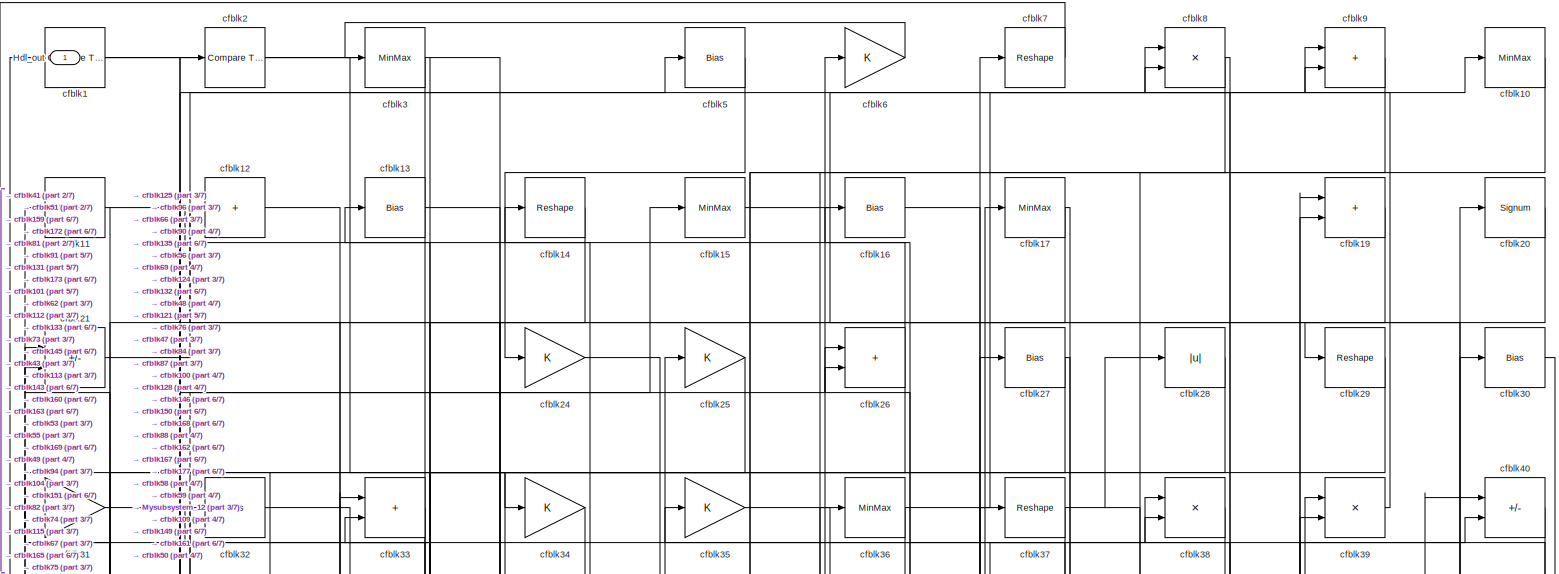
[diagram: root canvas - part 1/7, full width, top band]
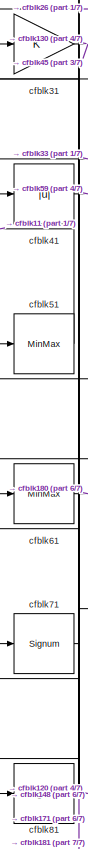
[diagram: root canvas - part 2/7, top left region]
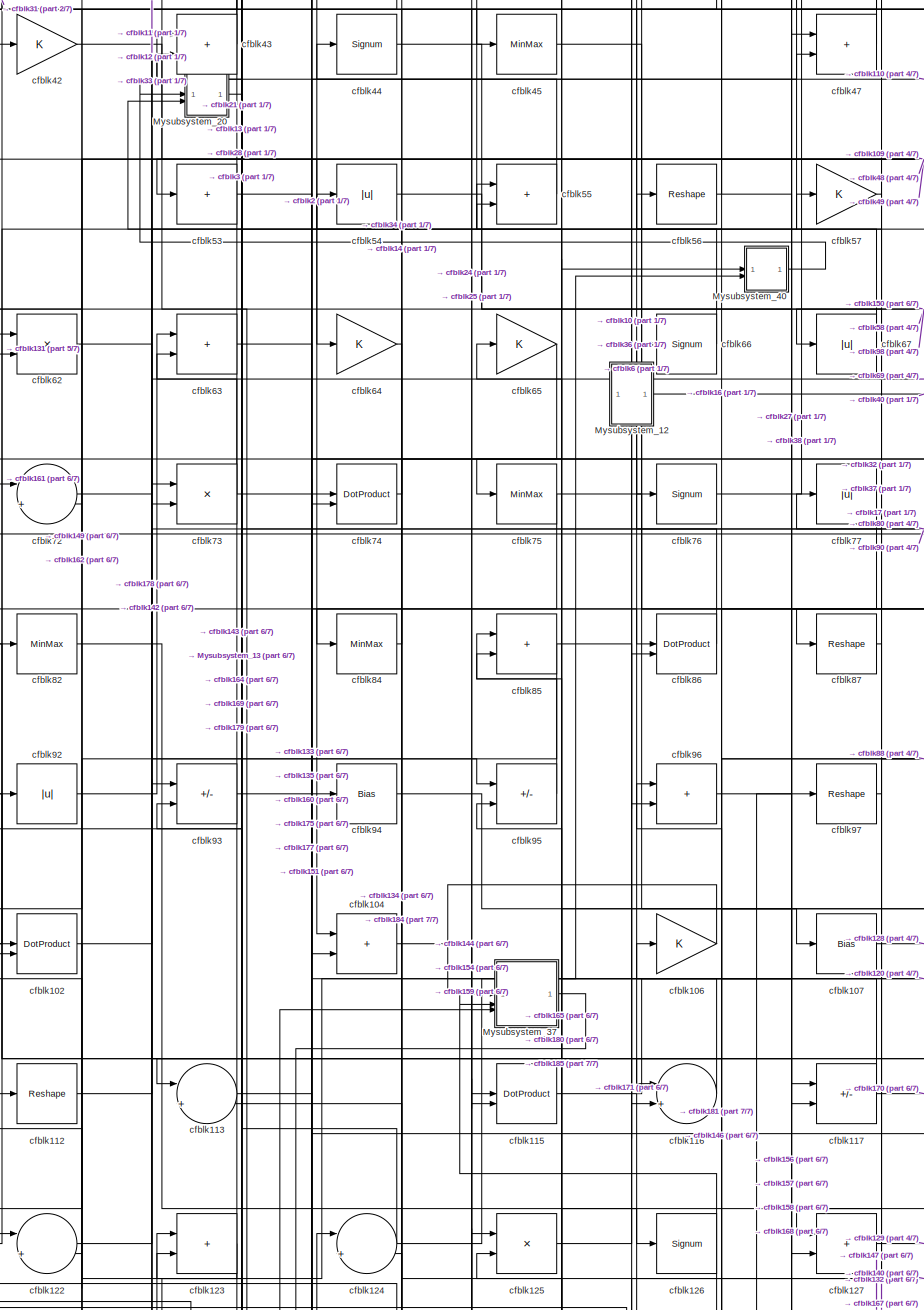
[diagram: root canvas - part 3/7, central region]
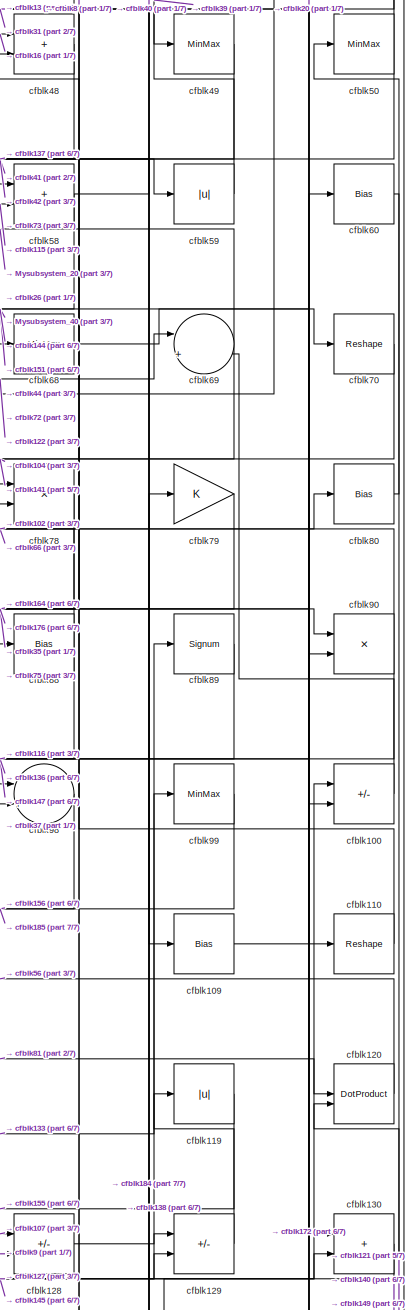
[diagram: root canvas - part 4/7, middle right region]
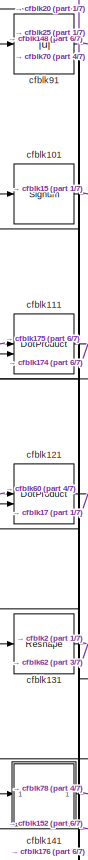
[diagram: root canvas - part 5/7, middle left region]
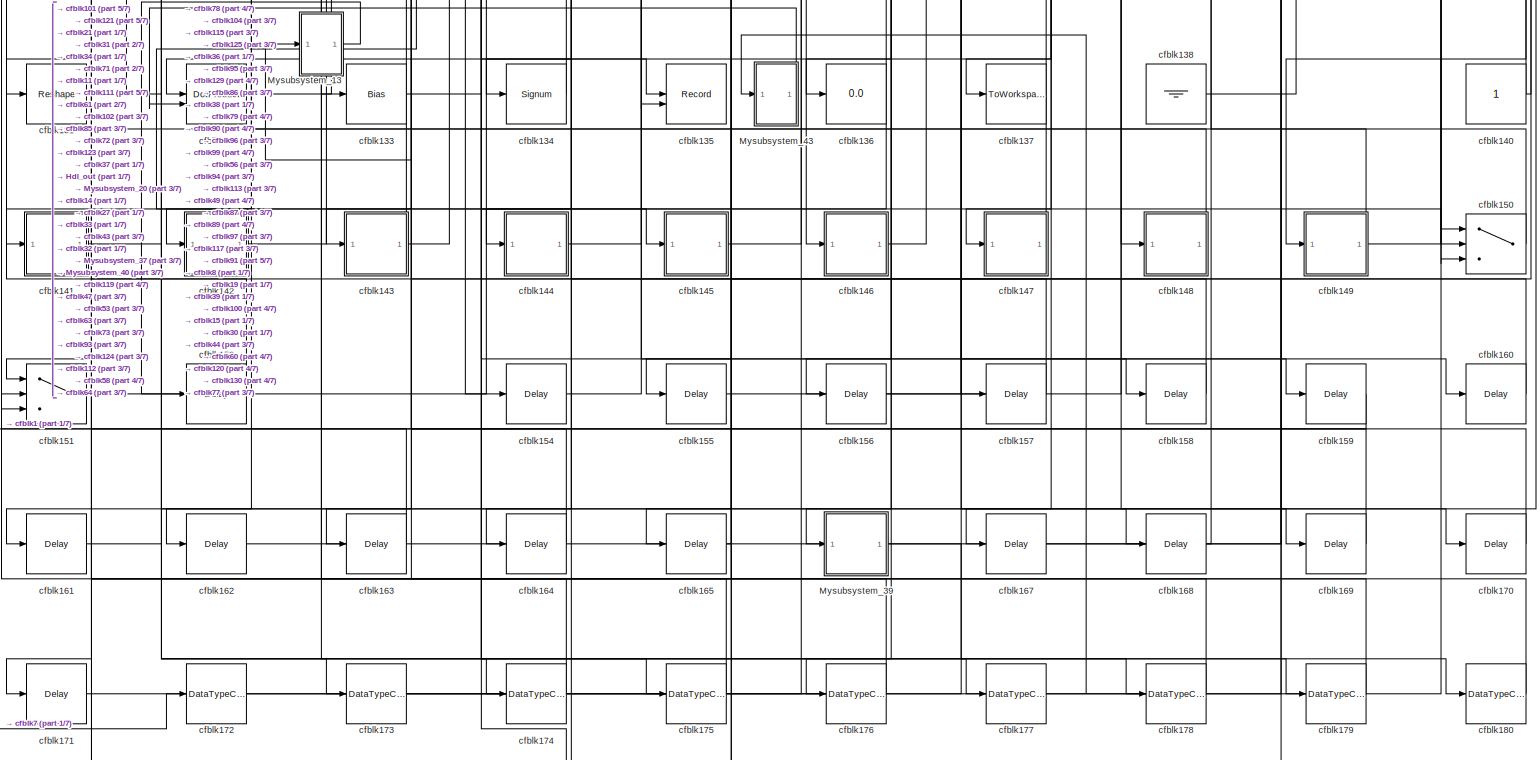
[diagram: root canvas - part 6/7, full width, bottom band]
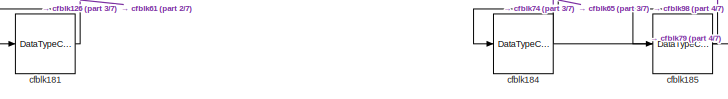
[diagram: root canvas - part 7/7, bottom left region]
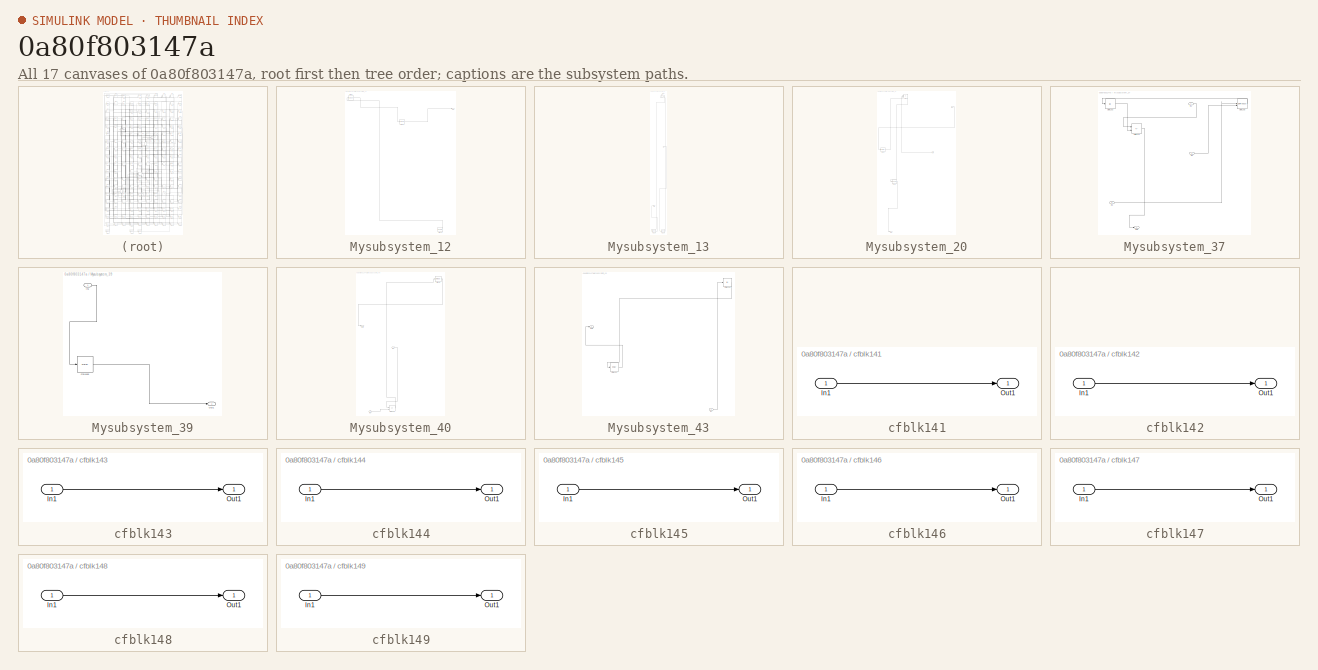
[diagram: thumbnail index - all 17 canvases of the model, root first then tree order]
MODEL slx_0a80f803147a
KIND model
CONFIG AbsTol = auto
CONFIG EnableMultiTasking = off
CONFIG FixedStep = auto
CONFIG MaxStep = auto
CONFIG MinStep = auto
CONFIG RelTol = 1e-3
CONFIG SampleTimeConstraint = Unconstrained
CONFIG SolverName = VariableStepAuto
CONFIG StartTime = 0.0
CONFIG StopTime = 10.0
BLOCK [Outport] Hdl_out
  OutDataTypeStr = uint8
BLOCK [SubSystem] Mysubsystem_12
  RTWFcnName = Mysubsystem_12
  RTWFcnNameOpts = User specified
  RTWFileNameOpts = Use function name
  RTWSystemCode = Reusable function
  TreatAsAtomicUnit = on
BLOCK [Outport] Mysubsystem_12/Out1
BLOCK [Reference] Mysubsystem_12/cfblk139  REF=hdlsllib/Sources/Counter
Limited
  SourceBlock = hdlsllib/Sources/Counter\nLimited
  SourceType = Counter Limited
BLOCK [Signum] Mysubsystem_12/cfblk22
BLOCK [Signum] Mysubsystem_12/cfblk46
BLOCK [SubSystem] Mysubsystem_13
  RTWFcnName = Mysubsystem_13
  RTWFcnNameOpts = User specified
  RTWFileNameOpts = Use function name
  RTWSystemCode = Reusable function
  TreatAsAtomicUnit = on
BLOCK [Inport] Mysubsystem_13/In1
BLOCK [Outport] Mysubsystem_13/Out1
BLOCK [DataTypeConversion] Mysubsystem_13/cfblk182
  OutDataTypeStr = uint8
  RndMeth = Floor
  SaturateOnIntegerOverflow = off
BLOCK [DataTypeConversion] Mysubsystem_13/cfblk183
  OutDataTypeStr = uint8
  RndMeth = Floor
  SaturateOnIntegerOverflow = off
BLOCK [Gain] Mysubsystem_13/cfblk23
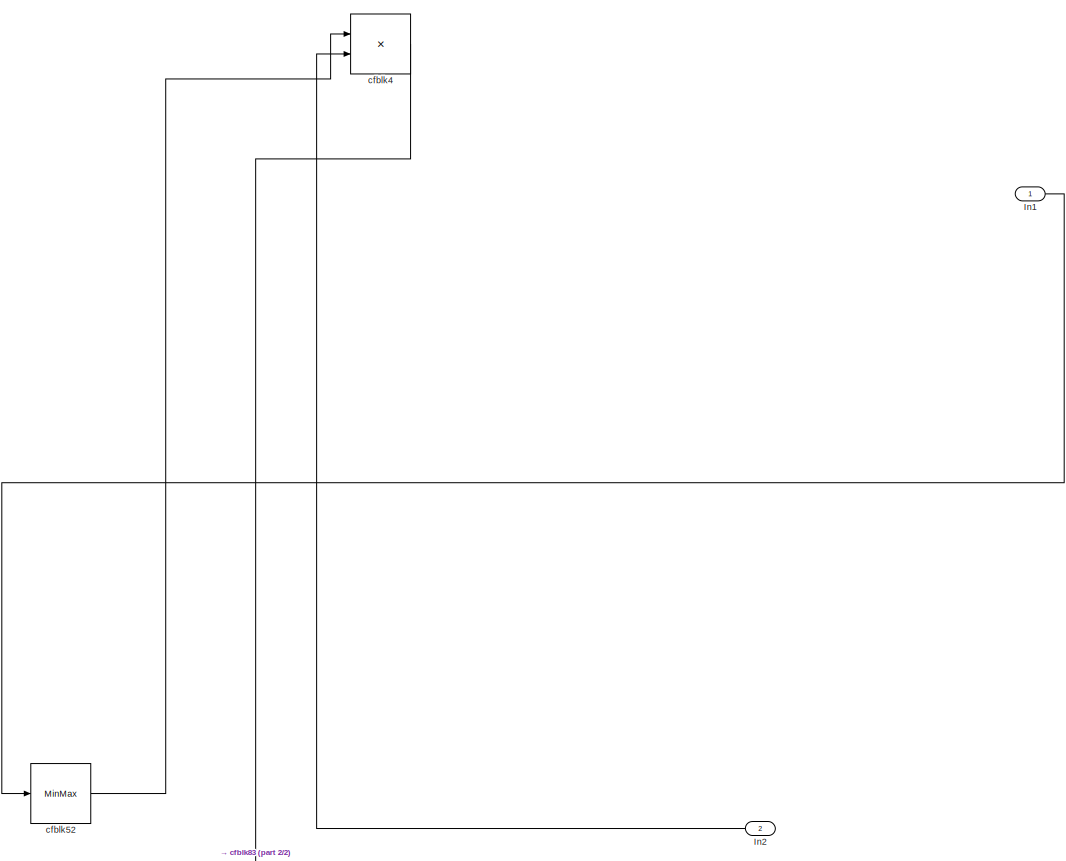
[diagram: Mysubsystem_20 - part 1/2, full width, top band]
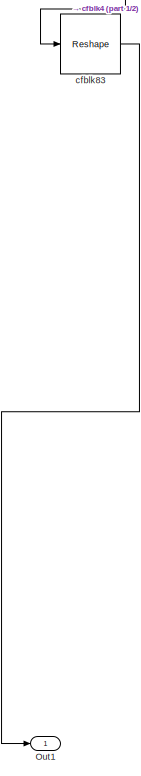
[diagram: Mysubsystem_20 - part 2/2, bottom left region]
BLOCK [SubSystem] Mysubsystem_20
  RTWFcnName = Mysubsystem_20
  RTWFcnNameOpts = User specified
  RTWFileNameOpts = Use function name
  RTWSystemCode = Reusable function
  TreatAsAtomicUnit = on
BLOCK [Inport] Mysubsystem_20/In1
BLOCK [Inport] Mysubsystem_20/In2
  Port = 2
BLOCK [Outport] Mysubsystem_20/Out1
BLOCK [Product] Mysubsystem_20/cfblk4
  Inputs = */
  RndMeth = Zero
  SaturateOnIntegerOverflow = on
BLOCK [MinMax] Mysubsystem_20/cfblk52
BLOCK [Reshape] Mysubsystem_20/cfblk83
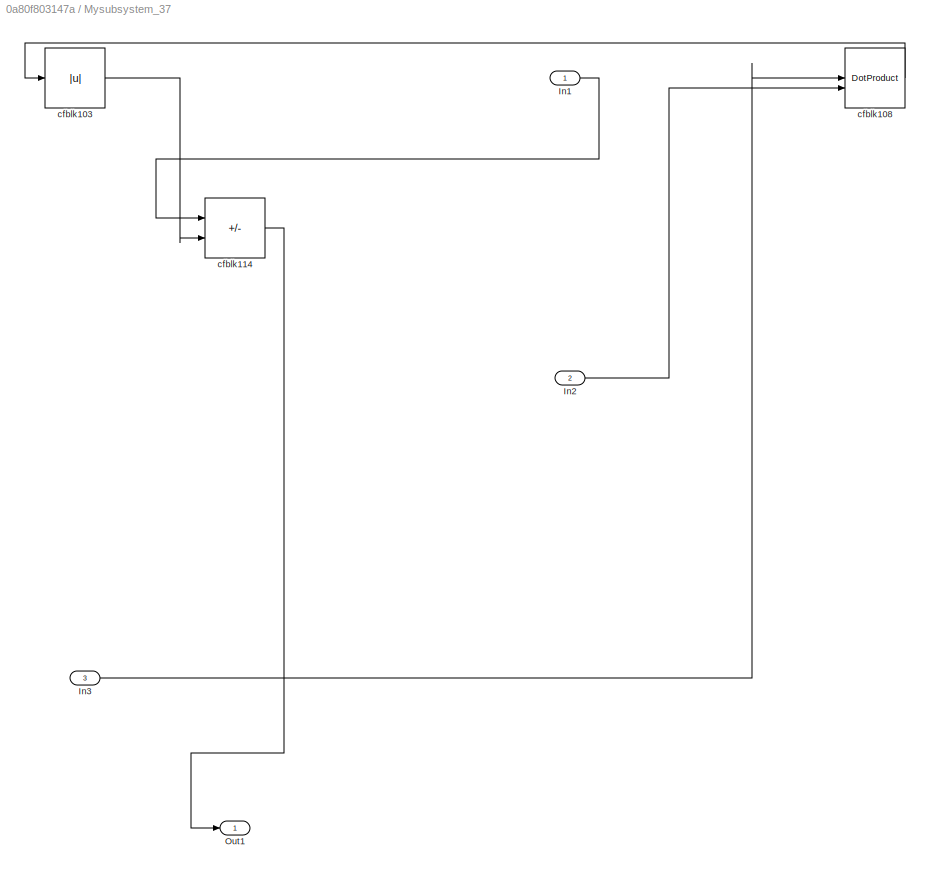
BLOCK [SubSystem] Mysubsystem_37
  RTWFcnName = Mysubsystem_37
  RTWFcnNameOpts = User specified
  RTWFileNameOpts = Use function name
  RTWSystemCode = Reusable function
  TreatAsAtomicUnit = on
BLOCK [Inport] Mysubsystem_37/In1
BLOCK [Inport] Mysubsystem_37/In2
  Port = 2
BLOCK [Inport] Mysubsystem_37/In3
  Port = 3
BLOCK [Outport] Mysubsystem_37/Out1
BLOCK [Abs] Mysubsystem_37/cfblk103
  SaturateOnIntegerOverflow = off
BLOCK [DotProduct] Mysubsystem_37/cfblk108
  OutDataTypeStr = Inherit: Inherit via internal rule
BLOCK [Sum] Mysubsystem_37/cfblk114
  IconShape = rectangular
  Inputs = +-
BLOCK [SubSystem] Mysubsystem_39
  RTWFcnName = Mysubsystem_39
  RTWFcnNameOpts = User specified
  RTWFileNameOpts = Use function name
  RTWSystemCode = Reusable function
  TreatAsAtomicUnit = on
BLOCK [Inport] Mysubsystem_39/In1
BLOCK [Outport] Mysubsystem_39/Out1
BLOCK [Delay] Mysubsystem_39/cfblk166
  InputPortMap = u0
  SampleTime = 1
BLOCK [SubSystem] Mysubsystem_40
  RTWFcnName = Mysubsystem_40
  RTWFcnNameOpts = User specified
  RTWFileNameOpts = Use function name
  RTWSystemCode = Reusable function
  TreatAsAtomicUnit = on
BLOCK [Inport] Mysubsystem_40/In1
BLOCK [Inport] Mysubsystem_40/In2
  Port = 2
BLOCK [Outport] Mysubsystem_40/Out1
BLOCK [Sum] Mysubsystem_40/cfblk105
  IconShape = rectangular
  Inputs = +-
BLOCK [MinMax] Mysubsystem_40/cfblk18
BLOCK [SubSystem] Mysubsystem_43
  RTWFcnName = Mysubsystem_43
  RTWFcnNameOpts = User specified
  RTWFileNameOpts = Use function name
  RTWSystemCode = Reusable function
  TreatAsAtomicUnit = on
BLOCK [Inport] Mysubsystem_43/In1
BLOCK [Outport] Mysubsystem_43/Out1
BLOCK [Abs] Mysubsystem_43/cfblk118
  SaturateOnIntegerOverflow = off
BLOCK [Delay] Mysubsystem_43/cfblk153
  InputPortMap = u0
  SampleTime = 1
BLOCK [Reference] cfblk1  REF=hdlsllib/Logic and Bit
Operations/Compare
To Zero
  SourceBlock = hdlsllib/Logic and Bit\nOperations/Compare\nTo Zero
  SourceType = Compare To Zero
BLOCK [MinMax] cfblk10
  OutDataTypeStr = uint8
BLOCK [Sum] cfblk100
  IconShape = rectangular
  Inputs = +-
  OutDataTypeStr = uint8
BLOCK [Signum] cfblk101
BLOCK [DotProduct] cfblk102
  OutDataTypeStr = uint8
BLOCK [Sum] cfblk104
  IconShape = rectangular
  OutDataTypeStr = uint8
BLOCK [Gain] cfblk106
  OutDataTypeStr = uint8
BLOCK [Bias] cfblk107
  Bias = 0.0
  SaturateOnIntegerOverflow = off
BLOCK [Bias] cfblk109
  Bias = 0.0
  SaturateOnIntegerOverflow = off
BLOCK [MinMax] cfblk11
  OutDataTypeStr = uint8
BLOCK [Reshape] cfblk110
BLOCK [DotProduct] cfblk111
  OutDataTypeStr = uint8
BLOCK [Reshape] cfblk112
BLOCK [Sum] cfblk113
  Inputs = |++
  OutDataTypeStr = uint8
BLOCK [DotProduct] cfblk115
  OutDataTypeStr = uint8
BLOCK [Sum] cfblk116
  Inputs = |++
  OutDataTypeStr = uint8
BLOCK [Sum] cfblk117
  IconShape = rectangular
  Inputs = +-
  OutDataTypeStr = uint8
BLOCK [Abs] cfblk119
  OutDataTypeStr = uint8
  SaturateOnIntegerOverflow = off
BLOCK [Sum] cfblk12
  IconShape = rectangular
  Inputs = +
  OutDataTypeStr = uint8
BLOCK [DotProduct] cfblk120
  OutDataTypeStr = uint8
BLOCK [DotProduct] cfblk121
  OutDataTypeStr = uint8
BLOCK [Sum] cfblk122
  Inputs = |++
  OutDataTypeStr = uint8
BLOCK [Sum] cfblk123
  IconShape = rectangular
  OutDataTypeStr = uint8
BLOCK [Sum] cfblk124
  Inputs = |++
  OutDataTypeStr = uint8
BLOCK [Product] cfblk125
  Inputs = */
  OutDataTypeStr = uint8
  RndMeth = Zero
  SaturateOnIntegerOverflow = on
BLOCK [Signum] cfblk126
BLOCK [Sum] cfblk127
  IconShape = rectangular
  OutDataTypeStr = uint8
BLOCK [Sum] cfblk128
  IconShape = rectangular
  Inputs = +-
  OutDataTypeStr = uint8
BLOCK [Sum] cfblk129
  IconShape = rectangular
  Inputs = +-
  OutDataTypeStr = uint8
BLOCK [Bias] cfblk13
  Bias = 0.0
  SaturateOnIntegerOverflow = off
BLOCK [Sum] cfblk130
  IconShape = rectangular
  OutDataTypeStr = uint8
BLOCK [Reshape] cfblk131
BLOCK [DotProduct] cfblk132
  OutDataTypeStr = uint8
BLOCK [Bias] cfblk133
  Bias = 0.0
  SaturateOnIntegerOverflow = off
BLOCK [Signum] cfblk134
BLOCK [Record] cfblk135
  CompatibilityTag = XY
  FileSettingsInternal = {"entries":[{"content":{"excelSettings":{"content":{},"type":"Streamout.ExcelSettings"}},"type":"Streamout.FileSettingStorage","uuid":""}],"packageUris":["http:\/\/schema.mathworks.com\/mf0\/streamout_blocks\/R2020a"],"version":"1.0"}
  Layout = [1 1]
  SignalsInternal = {"entries":[{"content":{"signals":[{"content":{"blockPath":[],"dimensions":[1],"domain":"","lineColor":"#a2142f","plots":[1],"port":1,"signalID":30093,"signalName":"cfblk73"},"type":"RecordBlkView.Signal","uuid":""},{"content":{"blockPath":[],"dimensions":[1],"domain":"","lineColor":"#139fff","plots":[1],"port":2,"signalID":30096,"signalName":"cfblk36"},"type":"RecordBlkView.Signal","uuid":""}]},"...<+142ch>
  VisualizationBindings = {"xyplotplugin":{"info":[{"series":[{"bindingParametersList":[{"parameter":"X-Axis","signalID":30093,"signalName":"cfblk73"},{"parameter":"Y-Axis","signalID":30096,"signalName":"cfblk36"}],"seriesID":1686}],"subplotID":1}]}}
  st = -1
BLOCK [Display] cfblk136
  Decimation = 1
BLOCK [ToWorkspace] cfblk137
  MaxDataPoints = inf
  SampleTime = -1
  SaveFormat = Timeseries
  VariableName = simout
BLOCK [Ground] cfblk138
BLOCK [Reshape] cfblk14
BLOCK [Constant] cfblk140
  OutDataTypeStr = uint8
  SampleTime = -1
BLOCK [SubSystem] cfblk141
  LibrarySourceBlock = hdlsllib/Ports &\nSubsystems/Subsystem
BLOCK [Inport] cfblk141/In1
BLOCK [Outport] cfblk141/Out1
BLOCK [SubSystem] cfblk142
  LibrarySourceBlock = hdlsllib/Ports &\nSubsystems/Subsystem
BLOCK [Inport] cfblk142/In1
BLOCK [Outport] cfblk142/Out1
BLOCK [SubSystem] cfblk143
  LibrarySourceBlock = hdlsllib/Ports &\nSubsystems/Subsystem
BLOCK [Inport] cfblk143/In1
BLOCK [Outport] cfblk143/Out1
BLOCK [SubSystem] cfblk144
  LibrarySourceBlock = hdlsllib/Ports &\nSubsystems/Subsystem
BLOCK [Inport] cfblk144/In1
BLOCK [Outport] cfblk144/Out1
BLOCK [SubSystem] cfblk145
  LibrarySourceBlock = hdlsllib/Ports &\nSubsystems/Subsystem
BLOCK [Inport] cfblk145/In1
BLOCK [Outport] cfblk145/Out1
BLOCK [SubSystem] cfblk146
  LibrarySourceBlock = hdlsllib/Ports &\nSubsystems/Subsystem
BLOCK [Inport] cfblk146/In1
BLOCK [Outport] cfblk146/Out1
BLOCK [SubSystem] cfblk147
  LibrarySourceBlock = hdlsllib/Ports &\nSubsystems/Subsystem
BLOCK [Inport] cfblk147/In1
BLOCK [Outport] cfblk147/Out1
BLOCK [SubSystem] cfblk148
  LibrarySourceBlock = hdlsllib/Ports &\nSubsystems/Subsystem
BLOCK [Inport] cfblk148/In1
BLOCK [Outport] cfblk148/Out1
BLOCK [SubSystem] cfblk149
  LibrarySourceBlock = hdlsllib/Ports &\nSubsystems/Subsystem
BLOCK [Inport] cfblk149/In1
BLOCK [Outport] cfblk149/Out1
BLOCK [MinMax] cfblk15
  OutDataTypeStr = uint8
BLOCK [Switch] cfblk150
  InputSameDT = off
  OutDataTypeStr = uint8
  SaturateOnIntegerOverflow = off
BLOCK [Switch] cfblk151
  InputSameDT = off
  OutDataTypeStr = uint8
  SaturateOnIntegerOverflow = off
BLOCK [Delay] cfblk152
  InputPortMap = u0
  SampleTime = 1
BLOCK [Delay] cfblk154
  InputPortMap = u0
  SampleTime = 1
BLOCK [Delay] cfblk155
  InputPortMap = u0
  SampleTime = 1
BLOCK [Delay] cfblk156
  InputPortMap = u0
  SampleTime = 1
BLOCK [Delay] cfblk157
  InputPortMap = u0
  SampleTime = 1
BLOCK [Delay] cfblk158
  InputPortMap = u0
  SampleTime = 1
BLOCK [Delay] cfblk159
  InputPortMap = u0
  SampleTime = 1
BLOCK [Bias] cfblk16
  Bias = 0.0
  SaturateOnIntegerOverflow = off
BLOCK [Delay] cfblk160
  InputPortMap = u0
  SampleTime = 1
BLOCK [Delay] cfblk161
  InputPortMap = u0
  SampleTime = 1
BLOCK [Delay] cfblk162
  InputPortMap = u0
  SampleTime = 1
BLOCK [Delay] cfblk163
  InputPortMap = u0
  SampleTime = 1
BLOCK [Delay] cfblk164
  InputPortMap = u0
  SampleTime = 1
BLOCK [Delay] cfblk165
  InputPortMap = u0
  SampleTime = 1
BLOCK [Delay] cfblk167
  InputPortMap = u0
  SampleTime = 1
BLOCK [Delay] cfblk168
  InputPortMap = u0
  SampleTime = 1
BLOCK [Delay] cfblk169
  InputPortMap = u0
  SampleTime = 1
BLOCK [MinMax] cfblk17
  OutDataTypeStr = uint8
BLOCK [Delay] cfblk170
  InputPortMap = u0
  SampleTime = 1
BLOCK [Delay] cfblk171
  InputPortMap = u0
  SampleTime = 1
BLOCK [DataTypeConversion] cfblk172
  OutDataTypeStr = uint8
  RndMeth = Floor
  SaturateOnIntegerOverflow = off
BLOCK [DataTypeConversion] cfblk173
  OutDataTypeStr = uint8
  RndMeth = Floor
  SaturateOnIntegerOverflow = off
BLOCK [DataTypeConversion] cfblk174
  OutDataTypeStr = uint8
  RndMeth = Floor
  SaturateOnIntegerOverflow = off
BLOCK [DataTypeConversion] cfblk175
  OutDataTypeStr = uint8
  RndMeth = Floor
  SaturateOnIntegerOverflow = off
BLOCK [DataTypeConversion] cfblk176
  OutDataTypeStr = uint8
  RndMeth = Floor
  SaturateOnIntegerOverflow = off
BLOCK [DataTypeConversion] cfblk177
  OutDataTypeStr = uint8
  RndMeth = Floor
  SaturateOnIntegerOverflow = off
BLOCK [DataTypeConversion] cfblk178
  OutDataTypeStr = uint8
  RndMeth = Floor
  SaturateOnIntegerOverflow = off
BLOCK [DataTypeConversion] cfblk179
  OutDataTypeStr = uint8
  RndMeth = Floor
  SaturateOnIntegerOverflow = off
BLOCK [DataTypeConversion] cfblk180
  OutDataTypeStr = uint8
  RndMeth = Floor
  SaturateOnIntegerOverflow = off
BLOCK [DataTypeConversion] cfblk181
  OutDataTypeStr = uint8
  RndMeth = Floor
  SaturateOnIntegerOverflow = off
BLOCK [DataTypeConversion] cfblk184
  OutDataTypeStr = uint8
  RndMeth = Floor
  SaturateOnIntegerOverflow = off
BLOCK [DataTypeConversion] cfblk185
  OutDataTypeStr = uint8
  RndMeth = Floor
  SaturateOnIntegerOverflow = off
BLOCK [Sum] cfblk19
  IconShape = rectangular
  OutDataTypeStr = uint8
BLOCK [Reference] cfblk2  REF=hdlsllib/Logic and Bit
Operations/Compare
To Zero
  SourceBlock = hdlsllib/Logic and Bit\nOperations/Compare\nTo Zero
  SourceType = Compare To Zero
BLOCK [Signum] cfblk20
BLOCK [Sum] cfblk21
  IconShape = rectangular
  Inputs = +-
  OutDataTypeStr = uint8
BLOCK [Gain] cfblk24
  OutDataTypeStr = uint8
BLOCK [Gain] cfblk25
  OutDataTypeStr = uint8
BLOCK [Sum] cfblk26
  IconShape = rectangular
  OutDataTypeStr = uint8
BLOCK [Bias] cfblk27
  Bias = 0.0
  SaturateOnIntegerOverflow = off
BLOCK [Abs] cfblk28
  OutDataTypeStr = uint8
  SaturateOnIntegerOverflow = off
BLOCK [Reshape] cfblk29
BLOCK [MinMax] cfblk3
  OutDataTypeStr = uint8
BLOCK [Bias] cfblk30
  Bias = 0.0
  SaturateOnIntegerOverflow = off
BLOCK [Gain] cfblk31
  OutDataTypeStr = uint8
BLOCK [Bias] cfblk32
  Bias = 0.0
  SaturateOnIntegerOverflow = off
BLOCK [Sum] cfblk33
  IconShape = rectangular
  OutDataTypeStr = uint8
BLOCK [Gain] cfblk34
  OutDataTypeStr = uint8
BLOCK [Gain] cfblk35
  OutDataTypeStr = uint8
BLOCK [MinMax] cfblk36
  OutDataTypeStr = uint8
BLOCK [Reshape] cfblk37
BLOCK [Product] cfblk38
  Inputs = */
  OutDataTypeStr = uint8
  RndMeth = Zero
  SaturateOnIntegerOverflow = on
BLOCK [Product] cfblk39
  Inputs = */
  OutDataTypeStr = uint8
  RndMeth = Zero
  SaturateOnIntegerOverflow = on
BLOCK [Sum] cfblk40
  IconShape = rectangular
  Inputs = +-
  OutDataTypeStr = uint8
BLOCK [Abs] cfblk41
  OutDataTypeStr = uint8
  SaturateOnIntegerOverflow = off
BLOCK [Gain] cfblk42
  OutDataTypeStr = uint8
BLOCK [Sum] cfblk43
  IconShape = rectangular
  OutDataTypeStr = uint8
BLOCK [Signum] cfblk44
BLOCK [MinMax] cfblk45
  OutDataTypeStr = uint8
BLOCK [Sum] cfblk47
  IconShape = rectangular
  OutDataTypeStr = uint8
BLOCK [Sum] cfblk48
  IconShape = rectangular
  OutDataTypeStr = uint8
BLOCK [MinMax] cfblk49
  OutDataTypeStr = uint8
BLOCK [Bias] cfblk5
  Bias = 0.0
  SaturateOnIntegerOverflow = off
BLOCK [MinMax] cfblk50
  OutDataTypeStr = uint8
BLOCK [MinMax] cfblk51
  OutDataTypeStr = uint8
BLOCK [Sum] cfblk53
  IconShape = rectangular
  Inputs = +
  OutDataTypeStr = uint8
BLOCK [Abs] cfblk54
  OutDataTypeStr = uint8
  SaturateOnIntegerOverflow = off
BLOCK [Sum] cfblk55
  IconShape = rectangular
  OutDataTypeStr = uint8
BLOCK [Reshape] cfblk56
BLOCK [Gain] cfblk57
  OutDataTypeStr = uint8
BLOCK [Sum] cfblk58
  IconShape = rectangular
  OutDataTypeStr = uint8
BLOCK [Abs] cfblk59
  OutDataTypeStr = uint8
  SaturateOnIntegerOverflow = off
BLOCK [Gain] cfblk6
  OutDataTypeStr = uint8
BLOCK [Bias] cfblk60
  Bias = 0.0
  SaturateOnIntegerOverflow = off
BLOCK [MinMax] cfblk61
  OutDataTypeStr = uint8
BLOCK [Product] cfblk62
  Inputs = */
  OutDataTypeStr = uint8
  RndMeth = Zero
  SaturateOnIntegerOverflow = on
BLOCK [Sum] cfblk63
  IconShape = rectangular
  OutDataTypeStr = uint8
BLOCK [Gain] cfblk64
  OutDataTypeStr = uint8
BLOCK [Gain] cfblk65
  OutDataTypeStr = uint8
BLOCK [Signum] cfblk66
BLOCK [Abs] cfblk67
  OutDataTypeStr = uint8
  SaturateOnIntegerOverflow = off
BLOCK [MinMax] cfblk68
  OutDataTypeStr = uint8
BLOCK [Sum] cfblk69
  Inputs = |++
  OutDataTypeStr = uint8
BLOCK [Reshape] cfblk7
BLOCK [Reshape] cfblk70
BLOCK [Signum] cfblk71
BLOCK [Sum] cfblk72
  Inputs = |++
  OutDataTypeStr = uint8
BLOCK [Product] cfblk73
  Inputs = */
  OutDataTypeStr = uint8
  RndMeth = Zero
  SaturateOnIntegerOverflow = on
BLOCK [DotProduct] cfblk74
  OutDataTypeStr = uint8
BLOCK [MinMax] cfblk75
  OutDataTypeStr = uint8
BLOCK [Signum] cfblk76
BLOCK [Abs] cfblk77
  OutDataTypeStr = uint8
  SaturateOnIntegerOverflow = off
BLOCK [Product] cfblk78
  Inputs = */
  OutDataTypeStr = uint8
  RndMeth = Zero
  SaturateOnIntegerOverflow = on
BLOCK [Gain] cfblk79
  OutDataTypeStr = uint8
BLOCK [Product] cfblk8
  Inputs = */
  OutDataTypeStr = uint8
  RndMeth = Zero
  SaturateOnIntegerOverflow = on
BLOCK [Bias] cfblk80
  Bias = 0.0
  SaturateOnIntegerOverflow = off
BLOCK [Signum] cfblk81
BLOCK [MinMax] cfblk82
  OutDataTypeStr = uint8
BLOCK [MinMax] cfblk84
  OutDataTypeStr = uint8
BLOCK [Sum] cfblk85
  IconShape = rectangular
  OutDataTypeStr = uint8
BLOCK [DotProduct] cfblk86
  OutDataTypeStr = uint8
BLOCK [Reshape] cfblk87
BLOCK [Bias] cfblk88
  Bias = 0.0
  SaturateOnIntegerOverflow = off
BLOCK [Signum] cfblk89
BLOCK [Sum] cfblk9
  IconShape = rectangular
  OutDataTypeStr = uint8
BLOCK [Product] cfblk90
  Inputs = */
  OutDataTypeStr = uint8
  RndMeth = Zero
  SaturateOnIntegerOverflow = on
BLOCK [Abs] cfblk91
  OutDataTypeStr = uint8
  SaturateOnIntegerOverflow = off
BLOCK [Abs] cfblk92
  OutDataTypeStr = uint8
  SaturateOnIntegerOverflow = off
BLOCK [Sum] cfblk93
  IconShape = rectangular
  Inputs = +-
  OutDataTypeStr = uint8
BLOCK [Bias] cfblk94
  Bias = 0.0
  SaturateOnIntegerOverflow = off
BLOCK [Sum] cfblk95
  IconShape = rectangular
  Inputs = +-
  OutDataTypeStr = uint8
BLOCK [Sum] cfblk96
  IconShape = rectangular
  OutDataTypeStr = uint8
BLOCK [Reshape] cfblk97
BLOCK [Sum] cfblk98
  Inputs = |++
  OutDataTypeStr = uint8
BLOCK [MinMax] cfblk99
  OutDataTypeStr = uint8
LINE Mysubsystem_12/cfblk139:1 -> Mysubsystem_12/cfblk22:1
LINE Mysubsystem_12/cfblk22:1 -> Mysubsystem_12/cfblk46:1
LINE Mysubsystem_12/cfblk46:1 -> Mysubsystem_12/Out1:1
LINE Mysubsystem_12:1 -> cfblk40:1
LINE Mysubsystem_13/In1:1 -> Mysubsystem_13/cfblk183:1
LINE Mysubsystem_13/cfblk182:1 -> Mysubsystem_13/Out1:1
LINE Mysubsystem_13/cfblk183:1 -> Mysubsystem_13/cfblk23:1
LINE Mysubsystem_13/cfblk23:1 -> Mysubsystem_13/cfblk182:1
LINE Mysubsystem_13:1 -> cfblk152:1
LINE Mysubsystem_20/In1:1 -> Mysubsystem_20/cfblk52:1
LINE Mysubsystem_20/In2:1 -> Mysubsystem_20/cfblk4:2
LINE Mysubsystem_20/cfblk4:1 -> Mysubsystem_20/cfblk83:1
LINE Mysubsystem_20/cfblk52:1 -> Mysubsystem_20/cfblk4:1
LINE Mysubsystem_20/cfblk83:1 -> Mysubsystem_20/Out1:1
LINE Mysubsystem_20:1 -> Mysubsystem_13:1
LINE Mysubsystem_37/In1:1 -> Mysubsystem_37/cfblk114:1
LINE Mysubsystem_37/In2:1 -> Mysubsystem_37/cfblk108:2
LINE Mysubsystem_37/In3:1 -> Mysubsystem_37/cfblk108:1
LINE Mysubsystem_37/cfblk103:1 -> Mysubsystem_37/cfblk114:2
LINE Mysubsystem_37/cfblk108:1 -> Mysubsystem_37/cfblk103:1
LINE Mysubsystem_37/cfblk114:1 -> Mysubsystem_37/Out1:1
LINE Mysubsystem_37:1 -> cfblk154:1
LINE Mysubsystem_39/In1:1 -> Mysubsystem_39/cfblk166:1
LINE Mysubsystem_39/cfblk166:1 -> Mysubsystem_39/Out1:1
LINE Mysubsystem_39:1 -> cfblk179:1
LINE Mysubsystem_40/In1:1 -> Mysubsystem_40/cfblk105:1
LINE Mysubsystem_40/In2:1 -> Mysubsystem_40/cfblk105:2
LINE Mysubsystem_40/cfblk105:1 -> Mysubsystem_40/cfblk18:1
LINE Mysubsystem_40/cfblk18:1 -> Mysubsystem_40/Out1:1
LINE Mysubsystem_40:1 -> Mysubsystem_20:1
LINE Mysubsystem_43/In1:1 -> Mysubsystem_43/cfblk118:1
LINE Mysubsystem_43/cfblk118:1 -> Mysubsystem_43/cfblk153:1
LINE Mysubsystem_43/cfblk153:1 -> Mysubsystem_43/Out1:1
LINE Mysubsystem_43:1 -> cfblk132:2
LINE cfblk100:1 -> cfblk69:2
LINE cfblk101:1 -> cfblk15:1
NET cfblk102:1 -> cfblk162:1, cfblk80:1
LINE cfblk104:1 -> cfblk159:1
LINE cfblk106:1 -> Mysubsystem_37:1
LINE cfblk107:1 -> cfblk128:1
NET cfblk109:1 -> cfblk110:1, cfblk20:1
NET cfblk10:1 -> cfblk75:1, cfblk96:2
LINE cfblk110:1 -> cfblk44:1
LINE cfblk111:1 -> cfblk174:1
LINE cfblk112:1 -> cfblk33:1
LINE cfblk113:1 -> cfblk160:1
LINE cfblk115:1 -> cfblk58:2
LINE cfblk116:1 -> cfblk106:1
NET cfblk117:1 -> cfblk170:1, cfblk55:1
LINE cfblk119:1 -> cfblk155:1
NET cfblk11:1 -> cfblk133:1, cfblk169:1, cfblk81:1, cfblk94:1
LINE cfblk120:1 -> cfblk56:1
LINE cfblk121:1 -> cfblk17:1
LINE cfblk122:1 -> cfblk69:1
LINE cfblk123:1 -> cfblk42:1
NET cfblk124:1 -> cfblk27:1, cfblk92:1
LINE cfblk125:1 -> cfblk36:1
NET cfblk126:1 -> Mysubsystem_37:2, cfblk181:1
LINE cfblk127:1 -> cfblk129:2
NET cfblk128:1 -> cfblk130:2, cfblk89:1
LINE cfblk129:1 -> cfblk99:1
LINE cfblk12:1 -> cfblk73:1
LINE cfblk130:1 -> cfblk149:1
NET cfblk131:1 -> cfblk2:1, cfblk62:2
LINE cfblk132:1 -> cfblk37:1
NET cfblk133:1 -> Mysubsystem_40:2, cfblk119:1, cfblk47:2
LINE cfblk134:1 -> cfblk112:1
LINE cfblk138:1 -> cfblk100:1
LINE cfblk13:1 -> cfblk49:1
NET cfblk140:1 -> cfblk120:2, cfblk77:1
LINE cfblk141/In1:1 -> cfblk141/Out1:1
LINE cfblk141:1 -> cfblk78:1
LINE cfblk142/In1:1 -> cfblk142/Out1:1
LINE cfblk142:1 -> cfblk123:1
LINE cfblk143/In1:1 -> cfblk143/Out1:1
NET cfblk143:1 -> Hdl_out:1, Mysubsystem_37:3
LINE cfblk144/In1:1 -> cfblk144/Out1:1
LINE cfblk144:1 -> cfblk125:1
LINE cfblk145/In1:1 -> cfblk145/Out1:1
LINE cfblk145:1 -> cfblk129:1
LINE cfblk146/In1:1 -> cfblk146/Out1:1
NET cfblk146:1 -> Mysubsystem_39:1, cfblk96:1, cfblk97:1
LINE cfblk147/In1:1 -> cfblk147/Out1:1
LINE cfblk147:1 -> cfblk113:2
LINE cfblk148/In1:1 -> cfblk148/Out1:1
LINE cfblk148:1 -> cfblk31:1
LINE cfblk149/In1:1 -> cfblk149/Out1:1
NET cfblk149:1 -> cfblk102:2, cfblk30:1
LINE cfblk14:1 -> cfblk163:1
LINE cfblk150:1 -> cfblk8:1
LINE cfblk151:1 -> cfblk124:1
LINE cfblk152:1 -> cfblk121:2
LINE cfblk154:1 -> cfblk115:1
LINE cfblk155:1 -> cfblk58:1
LINE cfblk156:1 -> cfblk47:1
LINE cfblk157:1 -> cfblk95:2
LINE cfblk158:1 -> cfblk124:2
LINE cfblk159:1 -> cfblk1:1
NET cfblk15:1 -> cfblk150:2, cfblk8:2
LINE cfblk160:1 -> cfblk33:2
LINE cfblk161:1 -> cfblk72:1
LINE cfblk162:1 -> cfblk39:2
LINE cfblk163:1 -> cfblk21:2
LINE cfblk164:1 -> cfblk123:2
LINE cfblk165:1 -> cfblk85:2
LINE cfblk167:1 -> cfblk19:1
LINE cfblk168:1 -> cfblk38:2
LINE cfblk169:1 -> cfblk43:2
LINE cfblk16:1 -> cfblk48:1
LINE cfblk170:1 -> cfblk151:2
LINE cfblk171:1 -> cfblk86:2
LINE cfblk172:1 -> cfblk60:1
LINE cfblk173:1 -> cfblk7:1
LINE cfblk174:1 -> cfblk101:1
LINE cfblk175:1 -> cfblk111:1
LINE cfblk176:1 -> cfblk111:2
NET cfblk177:1 -> Mysubsystem_43:1, cfblk19:2
LINE cfblk178:1 -> cfblk93:1
LINE cfblk179:1 -> cfblk93:2
NET cfblk17:1 -> cfblk74:2, cfblk87:1
NET cfblk180:1 -> cfblk125:2, cfblk71:1
LINE cfblk181:1 -> cfblk61:1
NET cfblk184:1 -> cfblk74:1, cfblk79:1
LINE cfblk185:1 -> cfblk65:1
LINE cfblk19:1 -> cfblk29:1
LINE cfblk1:1 -> cfblk173:1
LINE cfblk20:1 -> cfblk91:1
NET cfblk21:1 -> cfblk26:2, cfblk5:1, cfblk9:2
LINE cfblk24:1 -> cfblk115:2
NET cfblk25:1 -> cfblk131:1, cfblk62:1
NET cfblk26:1 -> cfblk12:1, cfblk41:1
NET cfblk27:1 -> cfblk143:1, cfblk67:1
LINE cfblk28:1 -> cfblk53:1
LINE cfblk29:1 -> cfblk34:1
LINE cfblk2:1 -> cfblk104:1
LINE cfblk30:1 -> cfblk161:1
NET cfblk31:1 -> cfblk130:1, cfblk45:1
LINE cfblk32:1 -> cfblk145:1
LINE cfblk33:1 -> cfblk51:1
NET cfblk34:1 -> cfblk151:1, cfblk82:1
LINE cfblk35:1 -> cfblk90:1
NET cfblk36:1 -> cfblk10:1, cfblk135:2
NET cfblk37:1 -> cfblk100:2, cfblk28:1, cfblk84:1
LINE cfblk38:1 -> cfblk146:1
LINE cfblk39:1 -> cfblk9:1
NET cfblk3:1 -> cfblk113:1, cfblk76:1
LINE cfblk40:1 -> cfblk48:2
LINE cfblk41:1 -> cfblk59:1
NET cfblk42:1 -> cfblk109:1, cfblk64:1
LINE cfblk43:1 -> cfblk21:1
NET cfblk44:1 -> cfblk150:1, cfblk98:2
LINE cfblk45:1 -> cfblk107:1
LINE cfblk47:1 -> cfblk32:1
LINE cfblk48:1 -> cfblk122:1
NET cfblk49:1 -> cfblk122:2, cfblk137:1, cfblk73:2
NET cfblk50:1 -> cfblk35:1, cfblk78:2, cfblk98:1
LINE cfblk51:1 -> cfblk11:1
NET cfblk53:1 -> cfblk150:3, cfblk86:1
LINE cfblk54:1 -> cfblk117:1
LINE cfblk55:1 -> cfblk13:1
NET cfblk56:1 -> cfblk158:1, cfblk16:1
LINE cfblk57:1 -> cfblk127:1
NET cfblk58:1 -> Mysubsystem_40:1, cfblk144:1, cfblk151:3, cfblk40:2, cfblk72:2
LINE cfblk59:1 -> cfblk39:1
LINE cfblk5:1 -> cfblk24:1
LINE cfblk60:1 -> cfblk121:1
LINE cfblk61:1 -> cfblk180:1
LINE cfblk62:1 -> cfblk95:1
LINE cfblk63:1 -> cfblk175:1
LINE cfblk64:1 -> cfblk134:1
LINE cfblk65:1 -> cfblk184:1
LINE cfblk66:1 -> cfblk6:1
LINE cfblk67:1 -> cfblk25:1
LINE cfblk68:1 -> cfblk70:1
NET cfblk69:1 -> Mysubsystem_20:2, cfblk104:2, cfblk26:1
LINE cfblk6:1 -> cfblk3:1
LINE cfblk70:1 -> cfblk141:1
LINE cfblk71:1 -> cfblk171:1
NET cfblk72:1 -> cfblk116:2, cfblk178:1, cfblk55:2
NET cfblk73:1 -> cfblk135:1, cfblk63:1
LINE cfblk74:1 -> cfblk14:1
NET cfblk75:1 -> cfblk102:1, cfblk90:2
LINE cfblk76:1 -> cfblk38:1
LINE cfblk77:1 -> cfblk127:2
LINE cfblk78:1 -> cfblk164:1
LINE cfblk79:1 -> cfblk176:1
LINE cfblk7:1 -> cfblk172:1
LINE cfblk80:1 -> cfblk50:1
LINE cfblk81:1 -> cfblk120:1
LINE cfblk82:1 -> cfblk126:1
LINE cfblk84:1 -> cfblk54:1
NET cfblk85:1 -> cfblk117:2, cfblk142:1
LINE cfblk86:1 -> cfblk43:1
LINE cfblk87:1 -> cfblk132:1
NET cfblk88:1 -> cfblk116:1, cfblk68:1
LINE cfblk89:1 -> cfblk147:1
NET cfblk8:1 -> cfblk165:1, cfblk88:1
NET cfblk90:1 -> cfblk136:1, cfblk66:1
LINE cfblk91:1 -> cfblk148:1
LINE cfblk92:1 -> cfblk63:2
LINE cfblk93:1 -> cfblk177:1
LINE cfblk94:1 -> cfblk157:1
LINE cfblk95:1 -> cfblk85:1
LINE cfblk96:1 -> cfblk168:1
NET cfblk97:1 -> cfblk167:1, cfblk57:1
LINE cfblk98:1 -> cfblk185:1
LINE cfblk99:1 -> cfblk156:1
LINE cfblk9:1 -> cfblk128:2
note: NET lines group one-source signal fan-out (src -> all destinations, sorted); 1:1 wires keep LINE
